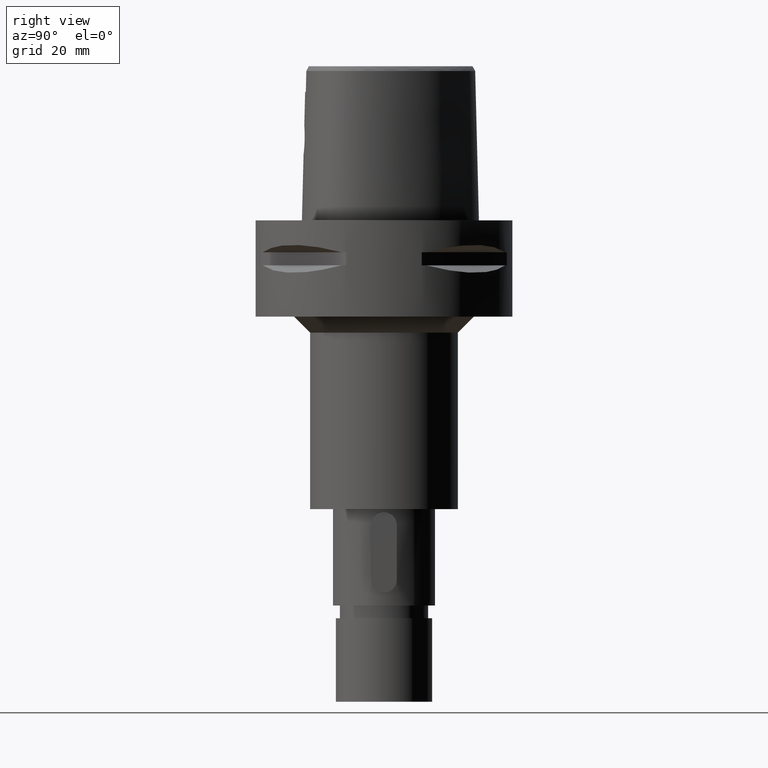
[diagram: clean part render]
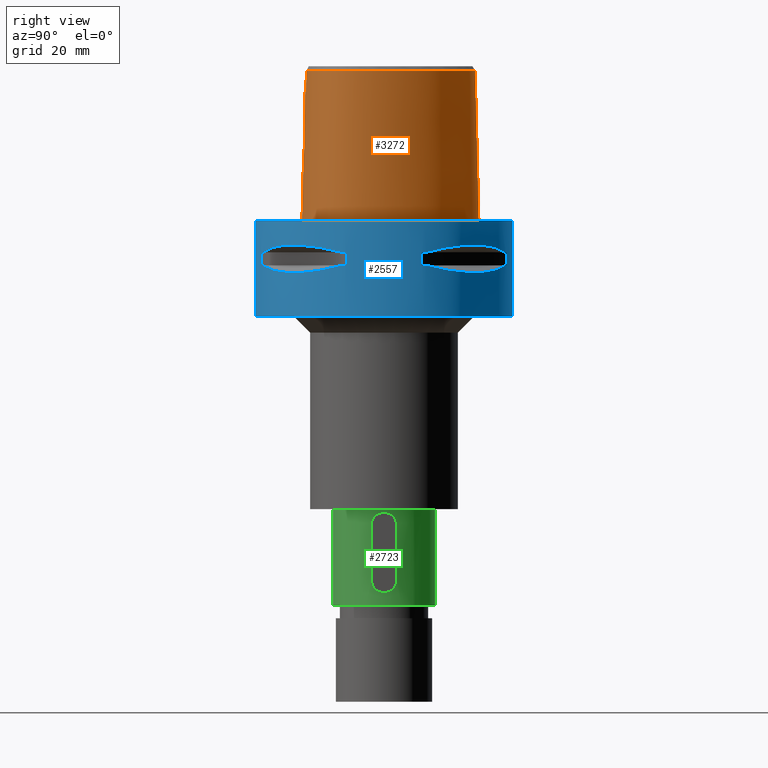
[diagram: same view with three faces highlighted in distinct colors, each labeled with its STEP entity id]
A machine part, right view with three faces highlighted in distinct colors.
Their STEP definitions:

[orange] entity #3272 — the highlighted face is a freeform B-spline surface patch.
#126=CARTESIAN_POINT('',(4.472216720977E0,-2.420009030094E1,4.652069014669E1));
#136=CARTESIAN_POINT('',(-1.344664598621E-11,2.841206021535E1,
4.652071719451E1));
#137=CARTESIAN_POINT('',(4.684967939510E-1,2.841206021535E1,4.652071719450E1));
#138=CARTESIAN_POINT('',(1.409694476970E0,2.836300179109E1,4.652069808154E1));
#139=CARTESIAN_POINT('',(2.941277498531E0,2.811693061418E1,4.652071981362E1));
#140=CARTESIAN_POINT('',(4.542113030431E0,2.768121082646E1,4.652071580544E1));
#141=CARTESIAN_POINT('',(6.226664118112E0,2.703434379547E1,4.652072264425E1));
#142=CARTESIAN_POINT('',(7.978548142713E0,2.615888088782E1,4.652072464534E1));
#143=CARTESIAN_POINT('',(9.743965214733E0,2.506861510128E1,4.652071069702E1));
#144=CARTESIAN_POINT('',(1.148662596568E1,2.378762594026E1,4.652072008645E1));
#145=CARTESIAN_POINT('',(1.324567883194E1,2.228280012557E1,4.652071053054E1));
#146=CARTESIAN_POINT('',(1.506620744984E1,2.048943006055E1,4.652071929630E1));
#147=CARTESIAN_POINT('',(1.699938694151E1,1.829546305659E1,4.652072348213E1));
#148=CARTESIAN_POINT('',(1.901475696621E1,1.563620579493E1,4.652067680644E1));
#149=CARTESIAN_POINT('',(2.099704995241E1,1.254981756695E1,4.652072905793E1));
#150=CARTESIAN_POINT('',(2.273005593894E1,9.316161415589E0,4.652068635233E1));
#151=CARTESIAN_POINT('',(2.409610127094E1,6.212796476556E0,4.652073526325E1));
#152=CARTESIAN_POINT('',(2.508516318229E1,3.429190223336E0,4.652070745588E1));
#153=CARTESIAN_POINT('',(2.579198667318E1,8.890580753926E-1,4.652071774662E1));
#154=CARTESIAN_POINT('',(2.626806747436E1,-1.456914216828E0,4.652071875765E1));
#155=CARTESIAN_POINT('',(2.654706439323E1,-3.653619468900E0,4.652071264896E1));
#156=CARTESIAN_POINT('',(2.664548349397E1,-5.742686706812E0,4.652072352033E1));
#157=CARTESIAN_POINT('',(2.656487623620E1,-7.723871444484E0,4.652072266789E1));
#158=CARTESIAN_POINT('',(2.631748519643E1,-9.536969720673E0,4.652071614817E1));
#159=CARTESIAN_POINT('',(2.592204141632E1,-1.118159327299E1,4.652071765768E1));
#160=CARTESIAN_POINT('',(2.540031143816E1,-1.265430922286E1,4.652071645345E1));
#161=CARTESIAN_POINT('',(2.475741663269E1,-1.399231370058E1,4.652071877229E1));
#162=CARTESIAN_POINT('',(2.398818909259E1,-1.522056759585E1,4.652071830950E1));
#163=CARTESIAN_POINT('',(2.305830316493E1,-1.640265778192E1,4.652071843312E1));
#164=CARTESIAN_POINT('',(2.193062814832E1,-1.756531745802E1,4.652071690486E1));
#165=CARTESIAN_POINT('',(2.055351328082E1,-1.872104609662E1,4.652071985736E1));
#166=CARTESIAN_POINT('',(1.893989980334E1,-1.982317630763E1,4.652072048828E1));
#167=CARTESIAN_POINT('',(1.711573784735E1,-2.083647285631E1,4.652071819726E1));
#168=CARTESIAN_POINT('',(1.514798583587E1,-2.172518071066E1,4.652071692685E1));
#169=CARTESIAN_POINT('',(1.298421573717E1,-2.251433302128E1,4.652071702410E1));
#170=CARTESIAN_POINT('',(1.054557086950E1,-2.321068755127E1,4.652070757844E1));
#171=CARTESIAN_POINT('',(7.770008681569E0,-2.379668616661E1,4.652074455655E1));
#172=CARTESIAN_POINT('',(5.612885431281E0,-2.409089905281E1,4.652064808639E1));
#173=CARTESIAN_POINT('',(4.472216720977E0,-2.420009030094E1,4.652069014669E1));
#247=DIRECTION('',(1.388127457203E-9,-2.499239851702E-2,-9.996876412242E-1));
#248=VECTOR('',#247,1.045326522127E1);
#249=CARTESIAN_POINT('',(-1.451045074373E-8,-2.457504746727E1,
4.000000005214E1));
#250=LINE('',#249,#248);
#268=CARTESIAN_POINT('',(-1.471980402915E-12,-2.506378435149E1,2.045E1));
#273=DIRECTION('',(-5.069013726386E-13,-2.499051295421E-2,-9.996876883619E-1));
#274=VECTOR('',#273,2.045638876829E1);
#275=CARTESIAN_POINT('',(-1.471980402915E-12,-2.506378435149E1,2.045E1));
#276=LINE('',#275,#274);
#296=CARTESIAN_POINT('',(-1.184135194879E-11,-2.5575E1,5.651035195342E-14));
#297=CARTESIAN_POINT('',(1.261238621678E0,-2.5575E1,5.651035195342E-14));
#298=CARTESIAN_POINT('',(3.718376521335E0,-2.547857319875E1,
-2.622654561359E-14));
#299=CARTESIAN_POINT('',(7.241671025876E0,-2.507018249385E1,0.E0));
#300=CARTESIAN_POINT('',(1.050186514317E1,-2.442969138420E1,0.E0));
#301=CARTESIAN_POINT('',(1.341994968635E1,-2.360714023817E1,0.E0));
#302=CARTESIAN_POINT('',(1.597211134731E1,-2.265224015399E1,0.E0));
#303=CARTESIAN_POINT('',(1.817383148660E1,-2.160480161931E1,0.E0));
#304=CARTESIAN_POINT('',(2.006067365719E1,-2.049015578929E1,0.E0));
#305=CARTESIAN_POINT('',(2.165744192350E1,-1.933495240673E1,0.E0));
#306=CARTESIAN_POINT('',(2.301207961487E1,-1.814106916780E1,0.E0));
#307=CARTESIAN_POINT('',(2.414512913607E1,-1.692257067922E1,0.E0));
#308=CARTESIAN_POINT('',(2.509912808057E1,-1.566067635013E1,0.E0));
#309=CARTESIAN_POINT('',(2.589357964506E1,-1.433652100146E1,0.E0));
#310=CARTESIAN_POINT('',(2.654389130106E1,-1.292938332888E1,0.E0));
#311=CARTESIAN_POINT('',(2.707172328836E1,-1.139174022610E1,0.E0));
#312=CARTESIAN_POINT('',(2.747100078885E1,-9.695535436744E0,0.E0));
#313=CARTESIAN_POINT('',(2.772772860508E1,-7.793252518364E0,0.E0));
#314=CARTESIAN_POINT('',(2.781205776278E1,-5.678384334808E0,0.E0));
#315=CARTESIAN_POINT('',(2.769250428910E1,-3.322453509345E0,0.E0));
#316=CARTESIAN_POINT('',(2.732953160454E1,-7.116077958537E-1,0.E0));
#317=CARTESIAN_POINT('',(2.668216957166E1,2.150800365378E0,0.E0));
#318=CARTESIAN_POINT('',(2.571434596721E1,5.237123211615E0,0.E0));
#319=CARTESIAN_POINT('',(2.440389157403E1,8.487583372600E0,0.E0));
#320=CARTESIAN_POINT('',(2.276465709442E1,1.178722344796E1,0.E0));
#321=CARTESIAN_POINT('',(2.085054465537E1,1.499581847934E1,0.E0));
#322=CARTESIAN_POINT('',(1.875783709650E1,1.795836410524E1,0.E0));
#323=CARTESIAN_POINT('',(1.657937174029E1,2.058058108947E1,0.E0));
#324=CARTESIAN_POINT('',(1.439693370190E1,2.281649842168E1,0.E0));
#325=CARTESIAN_POINT('',(1.226892136247E1,2.466459301985E1,0.E0));
#326=CARTESIAN_POINT('',(1.022684571373E1,2.615303276415E1,0.E0));
#327=CARTESIAN_POINT('',(8.288099626104E0,2.731875000257E1,0.E0));
#328=CARTESIAN_POINT('',(6.454697723033E0,2.820352161013E1,0.E0));
#329=CARTESIAN_POINT('',(4.718208451114E0,2.884629531795E1,0.E0));
#330=CARTESIAN_POINT('',(3.069546166511E0,2.927782237686E1,0.E0));
#331=CARTESIAN_POINT('',(1.501266042E0,2.952295074667E1,-2.323805908001E-14));
#332=CARTESIAN_POINT('',(4.932775472999E-1,2.957499999999E1,
5.007105841059E-14));
#333=CARTESIAN_POINT('',(3.071640558447E-11,2.957499999999E1,
5.007105841059E-14));
#338=CARTESIAN_POINT('',(3.071640558447E-11,2.957499999999E1,
5.007105841059E-14));
#375=CARTESIAN_POINT('',(-1.184135194879E-11,-2.5575E1,5.651035195342E-14));
#1148=CARTESIAN_POINT('',(-1.471980402915E-12,-2.506378435149E1,2.045E1));
#1149=CARTESIAN_POINT('',(3.954072385975E-1,-2.506378435149E1,2.045E1));
#1150=CARTESIAN_POINT('',(1.186753459268E0,-2.505127021271E1,2.055377441387E1));
#1151=CARTESIAN_POINT('',(2.293901026106E0,-2.499899038356E1,2.101029884895E1));
#1152=CARTESIAN_POINT('',(3.249199742156E0,-2.492423366302E1,2.174038340004E1));
#1153=CARTESIAN_POINT('',(3.983109891139E0,-2.484333493048E1,2.269399437273E1));
#1154=CARTESIAN_POINT('',(4.444902099457E0,-2.477340454867E1,2.380604644136E1));
#1155=CARTESIAN_POINT('',(4.602189725522E0,-2.472804812745E1,2.499792083744E1));
#1156=CARTESIAN_POINT('',(4.446334752733E0,-2.471346400510E1,2.618704469361E1));
#1157=CARTESIAN_POINT('',(3.988616765539E0,-2.472738510881E1,2.729584248229E1));
#1158=CARTESIAN_POINT('',(3.258671858173E0,-2.476043868878E1,2.825013255838E1));
#1159=CARTESIAN_POINT('',(2.303887962670E0,-2.479896037678E1,2.898443751551E1));
#1160=CARTESIAN_POINT('',(1.191549157684E0,-2.482886762172E1,2.944549741629E1));
#1161=CARTESIAN_POINT('',(3.970274391532E-1,-2.483629963748E1,2.955E1));
#1162=CARTESIAN_POINT('',(1.372734075390E-14,-2.483629963748E1,2.955E1));
#1167=CARTESIAN_POINT('',(4.602926386879E0,-2.435121850030E1,4.000000005215E1));
#1168=CARTESIAN_POINT('',(4.588866899356E0,-2.433440433283E1,4.072434907413E1));
#1169=CARTESIAN_POINT('',(4.559961035626E0,-2.430022594202E1,4.217314077646E1));
#1170=CARTESIAN_POINT('',(4.516394065040E0,-2.424985529238E1,4.434670381198E1));
#1171=CARTESIAN_POINT('',(4.487210999458E0,-2.421685509515E1,4.579599754735E1));
#1172=CARTESIAN_POINT('',(4.472216720977E0,-2.420009030094E1,4.652069014669E1));
#1177=DIRECTION('',(9.490236092259E-13,2.499051293976E-2,-9.996876883622E-1));
#1178=VECTOR('',#1177,4.653525069487E1);
#1179=CARTESIAN_POINT('',(-1.344664598621E-11,2.841206021535E1,
4.652071719451E1));
#1180=LINE('',#1179,#1178);
#1546=CARTESIAN_POINT('',(4.602926386879E0,-2.435121850030E1,4.000000005215E1));
#1547=CARTESIAN_POINT('',(4.092927945188E0,-2.440134254990E1,4.000000005215E1));
#1548=CARTESIAN_POINT('',(3.071957838276E0,-2.448406989328E1,3.999999998262E1));
#1549=CARTESIAN_POINT('',(1.536621703767E0,-2.455890147704E1,3.999999998262E1));
#1550=CARTESIAN_POINT('',(5.124223333400E-1,-2.457504746727E1,
4.000000005214E1));
#1551=CARTESIAN_POINT('',(-1.451045074373E-8,-2.457504746727E1,
4.000000005214E1));
#1556=CARTESIAN_POINT('',(-1.451045074373E-8,-2.457504746727E1,
4.000000005214E1));
#1583=VERTEX_POINT('',#126);
#1584=VERTEX_POINT('',#1167);
#1588=CARTESIAN_POINT('',(-1.344664598621E-11,2.841206021535E1,
4.652071719451E1));
#1589=VERTEX_POINT('',#1588);
#1590=VERTEX_POINT('',#338);
#1591=VERTEX_POINT('',#375);
#1592=VERTEX_POINT('',#1556);
#1593=CARTESIAN_POINT('',(1.372734075387E-14,-2.483629963748E1,2.955E1));
#1594=VERTEX_POINT('',#1593);
#1595=VERTEX_POINT('',#268);
#3151=CARTESIAN_POINT('',(-8.532294277696E-1,-2.559082453172E1,
-9.304145088381E-1));
#3152=CARTESIAN_POINT('',(-8.462047057211E-1,-2.518772799756E1,
1.519677031102E1));
#3153=CARTESIAN_POINT('',(-8.391799836726E-1,-2.478463146340E1,
3.132395513088E1));
#3154=CARTESIAN_POINT('',(-8.321552616240E-1,-2.438153492924E1,
4.745113995074E1));
#3155=CARTESIAN_POINT('',(-5.689009026249E-1,-2.559577917864E1,
-9.304145088381E-1));
#3156=CARTESIAN_POINT('',(-5.642169922449E-1,-2.519264563056E1,
1.519677031102E1));
#3157=CARTESIAN_POINT('',(-5.595330818649E-1,-2.478951208247E1,
3.132395513088E1));
#3158=CARTESIAN_POINT('',(-5.548491714850E-1,-2.438637853439E1,
4.745113995074E1));
#3159=CARTESIAN_POINT('',(2.393561154397E0,-2.562160365950E1,
-9.304145088381E-1));
#3160=CARTESIAN_POINT('',(2.373865159824E0,-2.521827241671E1,1.519677031102E1));
#3161=CARTESIAN_POINT('',(2.354169165251E0,-2.481494117392E1,3.132395513088E1));
#3162=CARTESIAN_POINT('',(2.334473170678E0,-2.441160993114E1,4.745113995074E1));
#3163=CARTESIAN_POINT('',(6.695047936614E0,-2.526858194701E1,
-9.304145088381E-1));
#3164=CARTESIAN_POINT('',(6.639625074949E0,-2.486795319891E1,1.519677031102E1));
#3165=CARTESIAN_POINT('',(6.584202213285E0,-2.446732445081E1,3.132395513088E1));
#3166=CARTESIAN_POINT('',(6.528779351620E0,-2.406669570272E1,4.745113995074E1));
#3167=CARTESIAN_POINT('',(1.174634101505E1,-2.415815461172E1,
-9.304145088381E-1));
#3168=CARTESIAN_POINT('',(1.164093423663E1,-2.376831842536E1,1.519677031102E1));
#3169=CARTESIAN_POINT('',(1.153552745822E1,-2.337848223900E1,3.132395513088E1));
#3170=CARTESIAN_POINT('',(1.143012067981E1,-2.298864605265E1,4.745113995074E1));
#3171=CARTESIAN_POINT('',(1.530623779629E1,-2.298697010262E1,
-9.304145088381E-1));
#3172=CARTESIAN_POINT('',(1.515935281685E1,-2.261055603219E1,1.519677031102E1));
#3173=CARTESIAN_POINT('',(1.501246783741E1,-2.223414196177E1,3.132395513088E1));
#3174=CARTESIAN_POINT('',(1.486558285796E1,-2.185772789134E1,4.745113995074E1));
#3175=CARTESIAN_POINT('',(1.856135208434E1,-2.147443746761E1,
-9.304145088381E-1));
#3176=CARTESIAN_POINT('',(1.836798846338E1,-2.111924011235E1,1.519677031102E1));
#3177=CARTESIAN_POINT('',(1.817462484241E1,-2.076404275708E1,3.132395513088E1));
#3178=CARTESIAN_POINT('',(1.798126122144E1,-2.040884540182E1,4.745113995074E1));
#3179=CARTESIAN_POINT('',(2.143542293297E1,-1.961750339196E1,
-9.304145088381E-1));
#3180=CARTESIAN_POINT('',(2.119046238461E1,-1.929498366049E1,1.519677031102E1));
#3181=CARTESIAN_POINT('',(2.094550183625E1,-1.897246392901E1,3.132395513088E1));
#3182=CARTESIAN_POINT('',(2.070054128789E1,-1.864994419754E1,4.745113995074E1));
#3183=CARTESIAN_POINT('',(2.344929528212E1,-1.778045352005E1,
-9.304145088381E-1));
#3184=CARTESIAN_POINT('',(2.315870204166E1,-1.749879693304E1,1.519677031102E1));
#3185=CARTESIAN_POINT('',(2.286810880120E1,-1.721714034603E1,3.132395513088E1));
#3186=CARTESIAN_POINT('',(2.257751556074E1,-1.693548375902E1,4.745113995074E1));
#3187=CARTESIAN_POINT('',(2.479336081514E1,-1.613554022499E1,
-9.304145088381E-1));
#3188=CARTESIAN_POINT('',(2.446791222502E1,-1.589630653346E1,1.519677031102E1));
#3189=CARTESIAN_POINT('',(2.414246363490E1,-1.565707284194E1,3.132395513088E1));
#3190=CARTESIAN_POINT('',(2.381701504479E1,-1.541783915042E1,4.745113995074E1));
#3191=CARTESIAN_POINT('',(2.565830880233E1,-1.481383149400E1,
-9.304145088381E-1));
#3192=CARTESIAN_POINT('',(2.530843713758E1,-1.461183299393E1,1.519677031102E1));
#3193=CARTESIAN_POINT('',(2.495856547282E1,-1.440983449385E1,3.132395513088E1));
#3194=CARTESIAN_POINT('',(2.460869380807E1,-1.420783599378E1,4.745113995074E1));
#3195=CARTESIAN_POINT('',(2.637046814614E1,-1.340391019852E1,
-9.304145088381E-1));
#3196=CARTESIAN_POINT('',(2.600056139783E1,-1.324168029917E1,1.519677031102E1));
#3197=CARTESIAN_POINT('',(2.563065464952E1,-1.307945039983E1,3.132395513088E1));
#3198=CARTESIAN_POINT('',(2.526074790120E1,-1.291722050048E1,4.745113995074E1));
#3199=CARTESIAN_POINT('',(2.712297208059E1,-1.141745865562E1,
-9.304145088381E-1));
#3200=CARTESIAN_POINT('',(2.673375369464E1,-1.130662581235E1,1.519677031102E1));
#3201=CARTESIAN_POINT('',(2.634453530870E1,-1.119579296908E1,3.132395513088E1));
#3202=CARTESIAN_POINT('',(2.595531692276E1,-1.108496012580E1,4.745113995074E1));
#3203=CARTESIAN_POINT('',(2.770696775982E1,-8.754869100935E0,
-9.304145088381E-1));
#3204=CARTESIAN_POINT('',(2.730517725571E1,-8.703986976393E0,1.519677031102E1));
#3205=CARTESIAN_POINT('',(2.690338675159E1,-8.653104851851E0,3.132395513088E1));
#3206=CARTESIAN_POINT('',(2.650159624748E1,-8.602222727310E0,4.745113995074E1));
#3207=CARTESIAN_POINT('',(2.787808443180E1,-5.337383714048E0,
-9.304145088381E-1));
#3208=CARTESIAN_POINT('',(2.747379250295E1,-5.347524337213E0,1.519677031102E1));
#3209=CARTESIAN_POINT('',(2.706950057409E1,-5.357664960378E0,3.132395513088E1));
#3210=CARTESIAN_POINT('',(2.666520864524E1,-5.367805583543E0,4.745113995074E1));
#3211=CARTESIAN_POINT('',(2.756041892320E1,-1.762105663641E0,
-9.304145088381E-1));
#3212=CARTESIAN_POINT('',(2.716099297682E1,-1.823107493862E0,1.519677031102E1));
#3213=CARTESIAN_POINT('',(2.676156703044E1,-1.884109324082E0,3.132395513088E1));
#3214=CARTESIAN_POINT('',(2.636214108406E1,-1.945111154303E0,4.745113995074E1));
#3215=CARTESIAN_POINT('',(2.679474625851E1,1.906447387538E0,
-9.304145088381E-1));
#3216=CARTESIAN_POINT('',(2.640443225128E1,1.802817670205E0,1.519677031102E1));
#3217=CARTESIAN_POINT('',(2.601411824404E1,1.699187952871E0,3.132395513088E1));
#3218=CARTESIAN_POINT('',(2.562380423681E1,1.595558235537E0,4.745113995074E1));
#3219=CARTESIAN_POINT('',(2.523075706257E1,6.836210430870E0,
-9.304145088381E-1));
#3220=CARTESIAN_POINT('',(2.485610464236E1,6.683875462453E0,1.519677031102E1));
#3221=CARTESIAN_POINT('',(2.448145222216E1,6.531540494036E0,3.132395513088E1));
#3222=CARTESIAN_POINT('',(2.410679980195E1,6.379205525618E0,4.745113995074E1));
#3223=CARTESIAN_POINT('',(2.235908247837E1,1.290902243091E1,
-9.304145088381E-1));
#3224=CARTESIAN_POINT('',(2.200846691966E1,1.270659196179E1,1.519677031102E1));
#3225=CARTESIAN_POINT('',(2.165785136095E1,1.250416149267E1,3.132395513088E1));
#3226=CARTESIAN_POINT('',(2.130723580224E1,1.230173102354E1,4.745113995074E1));
#3227=CARTESIAN_POINT('',(1.777103258690E1,1.953703864498E1,
-9.304145088381E-1));
#3228=CARTESIAN_POINT('',(1.745811261679E1,1.927961879860E1,1.519677031102E1));
#3229=CARTESIAN_POINT('',(1.714519264667E1,1.902219895222E1,3.132395513088E1));
#3230=CARTESIAN_POINT('',(1.683227267656E1,1.876477910584E1,4.745113995074E1));
#3231=CARTESIAN_POINT('',(1.323332856346E1,2.406149249964E1,
-9.304145088381E-1));
#3232=CARTESIAN_POINT('',(1.296695409144E1,2.375598708912E1,1.519677031102E1));
#3233=CARTESIAN_POINT('',(1.270057961943E1,2.345048167860E1,3.132395513088E1));
#3234=CARTESIAN_POINT('',(1.243420514741E1,2.314497626808E1,4.745113995074E1));
#3235=CARTESIAN_POINT('',(9.316733117685E0,2.681182150708E1,
-9.304145088381E-1));
#3236=CARTESIAN_POINT('',(9.105791459095E0,2.646675913432E1,1.519677031102E1));
#3237=CARTESIAN_POINT('',(8.894849800505E0,2.612169676155E1,3.132395513088E1));
#3238=CARTESIAN_POINT('',(8.683908141915E0,2.577663438879E1,4.745113995074E1));
#3239=CARTESIAN_POINT('',(6.271543170824E0,2.837237220596E1,
-9.304145088381E-1));
#3240=CARTESIAN_POINT('',(6.114741919608E0,2.799897532348E1,1.519677031102E1));
#3241=CARTESIAN_POINT('',(5.957940668393E0,2.762557844100E1,3.132395513088E1));
#3242=CARTESIAN_POINT('',(5.801139417177E0,2.725218155852E1,4.745113995074E1));
#3243=CARTESIAN_POINT('',(3.154109046678E0,2.936302093454E1,
-9.304145088381E-1));
#3244=CARTESIAN_POINT('',(3.067023395785E0,2.896669973594E1,1.519677031102E1));
#3245=CARTESIAN_POINT('',(2.979937744892E0,2.857037853733E1,3.132395513088E1));
#3246=CARTESIAN_POINT('',(2.892852093999E0,2.817405733873E1,4.745113995074E1));
#3247=CARTESIAN_POINT('',(7.484115208165E-1,2.963215901997E1,
-9.304145088381E-1));
#3248=CARTESIAN_POINT('',(7.265635654159E-1,2.922802202371E1,1.519677031102E1));
#3249=CARTESIAN_POINT('',(7.047156100153E-1,2.882388502746E1,3.132395513088E1));
#3250=CARTESIAN_POINT('',(6.828676546147E-1,2.841974803120E1,4.745113995074E1));
#3251=CARTESIAN_POINT('',(-6.060951003885E-1,2.958848805205E1,
-9.304145088381E-1));
#3252=CARTESIAN_POINT('',(-5.886350993904E-1,2.918561926518E1,
1.519677031102E1));
#3253=CARTESIAN_POINT('',(-5.711750983924E-1,2.878275047832E1,
3.132395513088E1));
#3254=CARTESIAN_POINT('',(-5.537150973943E-1,2.837988169146E1,
4.745113995074E1));
#3255=CARTESIAN_POINT('',(-9.090099845403E-1,2.956867551677E1,
-9.304145088381E-1));
#3256=CARTESIAN_POINT('',(-8.826521028003E-1,2.916640540920E1,
1.519677031102E1));
#3257=CARTESIAN_POINT('',(-8.562942210602E-1,2.876413530162E1,
3.132395513088E1));
#3258=CARTESIAN_POINT('',(-8.299363393202E-1,2.836186519405E1,
4.745113995074E1));
#3259=B_SPLINE_SURFACE_WITH_KNOTS('',3,3,((#3151,#3152,#3153,#3154),(#3155,
#3156,#3157,#3158),(#3159,#3160,#3161,#3162),(#3163,#3164,#3165,#3166),(#3167,
#3168,#3169,#3170),(#3171,#3172,#3173,#3174),(#3175,#3176,#3177,#3178),(#3179,
#3180,#3181,#3182),(#3183,#3184,#3185,#3186),(#3187,#3188,#3189,#3190),(#3191,
#3192,#3193,#3194),(#3195,#3196,#3197,#3198),(#3199,#3200,#3201,#3202),(#3203,
#3204,#3205,#3206),(#3207,#3208,#3209,#3210),(#3211,#3212,#3213,#3214),(#3215,
#3216,#3217,#3218),(#3219,#3220,#3221,#3222),(#3223,#3224,#3225,#3226),(#3227,
#3228,#3229,#3230),(#3231,#3232,#3233,#3234),(#3235,#3236,#3237,#3238),(#3239,
#3240,#3241,#3242),(#3243,#3244,#3245,#3246),(#3247,#3248,#3249,#3250),(#3251,
#3252,#3253,#3254),(#3255,#3256,#3257,#3258)),.UNSPECIFIED.,.F.,.F.,.F.,(4,1,1,
1,1,1,1,1,1,1,1,1,1,1,1,1,1,1,1,1,1,1,1,1,4),(4,4),(-8.851417483033E-3,0.E0,
8.333333333341E-2,1.250000000001E-1,1.666666666667E-1,2.083333333333E-1,2.5E-1,
2.916666666667E-1,3.124999999999E-1,3.333333333332E-1,3.541666666666E-1,
3.749999999999E-1,4.166666666666E-1,4.583333333332E-1,4.999999999998E-1,
5.416666666665E-1,5.833333333331E-1,6.666666666665E-1,7.499999999997E-1,
8.333333333330E-1,8.749999999996E-1,9.166666666663E-1,9.583333333329E-1,1.E0,
1.012009199036E0),(4.559754549632E-9,9.999997674526E-1),.UNSPECIFIED.);
#3260=ORIENTED_EDGE('',*,*,#2501,.F.);
#3261=ORIENTED_EDGE('',*,*,#2485,.F.);
#3263=ORIENTED_EDGE('',*,*,#3262,.T.);
#3264=ORIENTED_EDGE('',*,*,#2481,.F.);
#3266=ORIENTED_EDGE('',*,*,#3265,.F.);
#3267=ORIENTED_EDGE('',*,*,#1782,.T.);
#3268=ORIENTED_EDGE('',*,*,#2074,.F.);
#3269=ORIENTED_EDGE('',*,*,#2475,.T.);
#3270=EDGE_LOOP('',(#3260,#3261,#3263,#3264,#3266,#3267,#3268,#3269));
#3271=FACE_OUTER_BOUND('',#3270,.F.);
#174=B_SPLINE_CURVE_WITH_KNOTS('',3,(#136,#137,#138,#139,#140,#141,#142,#143,
#144,#145,#146,#147,#148,#149,#150,#151,#152,#153,#154,#155,#156,#157,#158,#159,
#160,#161,#162,#163,#164,#165,#166,#167,#168,#169,#170,#171,#172,#173),
.UNSPECIFIED.,.F.,.F.,(4,1,1,1,1,1,1,1,1,1,1,1,1,1,1,1,1,1,1,1,1,1,1,1,1,1,1,1,
1,1,1,1,1,1,1,4),(0.E0,2.857142857143E-2,5.714285714286E-2,8.571428571429E-2,
1.142857142857E-1,1.428571428571E-1,1.714285714286E-1,2.E-1,2.285714285714E-1,
2.571428571429E-1,2.857142857143E-1,3.142857142857E-1,3.428571428571E-1,
3.714285714286E-1,4.E-1,4.285714285714E-1,4.571428571429E-1,4.857142857143E-1,
5.142857142857E-1,5.428571428571E-1,5.714285714286E-1,6.E-1,6.285714285714E-1,
6.571428571429E-1,6.857142857143E-1,7.142857142857E-1,7.428571428571E-1,
7.714285714286E-1,8.E-1,8.285714285714E-1,8.571428571429E-1,8.857142857143E-1,
9.142857142857E-1,9.428571428571E-1,9.714285714286E-1,1.E0),.UNSPECIFIED.);
#334=B_SPLINE_CURVE_WITH_KNOTS('',3,(#296,#297,#298,#299,#300,#301,#302,#303,
#304,#305,#306,#307,#308,#309,#310,#311,#312,#313,#314,#315,#316,#317,#318,#319,
#320,#321,#322,#323,#324,#325,#326,#327,#328,#329,#330,#331,#332,#333),
.UNSPECIFIED.,.F.,.F.,(4,1,1,1,1,1,1,1,1,1,1,1,1,1,1,1,1,1,1,1,1,1,1,1,1,1,1,1,
1,1,1,1,1,1,1,4),(0.E0,2.857142857143E-2,5.714285714286E-2,8.571428571429E-2,
1.142857142857E-1,1.428571428571E-1,1.714285714286E-1,2.E-1,2.285714285714E-1,
2.571428571429E-1,2.857142857143E-1,3.142857142857E-1,3.428571428571E-1,
3.714285714286E-1,4.E-1,4.285714285714E-1,4.571428571429E-1,4.857142857143E-1,
5.142857142857E-1,5.428571428571E-1,5.714285714286E-1,6.E-1,6.285714285714E-1,
6.571428571429E-1,6.857142857143E-1,7.142857142857E-1,7.428571428571E-1,
7.714285714286E-1,8.E-1,8.285714285714E-1,8.571428571429E-1,8.857142857143E-1,
9.142857142857E-1,9.428571428571E-1,9.714285714286E-1,1.E0),.UNSPECIFIED.);
#1163=B_SPLINE_CURVE_WITH_KNOTS('',3,(#1148,#1149,#1150,#1151,#1152,#1153,#1154,
#1155,#1156,#1157,#1158,#1159,#1160,#1161,#1162),.UNSPECIFIED.,.F.,.F.,(4,1,1,1,
1,1,1,1,1,1,1,1,4),(0.E0,8.333333333333E-2,1.666666666667E-1,2.5E-1,
3.333333333333E-1,4.166666666667E-1,5.E-1,5.833333333333E-1,6.666666666667E-1,
7.5E-1,8.333333333333E-1,9.166666666667E-1,1.E0),.UNSPECIFIED.);
#1173=B_SPLINE_CURVE_WITH_KNOTS('',3,(#1167,#1168,#1169,#1170,#1171,#1172),
.UNSPECIFIED.,.F.,.F.,(4,1,1,4),(0.E0,3.333333333333E-1,6.666666666667E-1,1.E0),
.UNSPECIFIED.);
#1552=B_SPLINE_CURVE_WITH_KNOTS('',3,(#1546,#1547,#1548,#1549,#1550,#1551),
.UNSPECIFIED.,.F.,.F.,(4,1,1,4),(0.E0,3.333333333333E-1,6.666666666667E-1,1.E0),
.UNSPECIFIED.);
#1782=EDGE_CURVE('',#1584,#1583,#1173,.T.);
#2074=EDGE_CURVE('',#1589,#1583,#174,.T.);
#2475=EDGE_CURVE('',#1589,#1590,#1180,.T.);
#2481=EDGE_CURVE('',#1592,#1594,#250,.T.);
#2485=EDGE_CURVE('',#1595,#1591,#276,.T.);
#2501=EDGE_CURVE('',#1591,#1590,#334,.T.);
#3262=EDGE_CURVE('',#1595,#1594,#1163,.T.);
#3265=EDGE_CURVE('',#1584,#1592,#1552,.T.);
#3272=ADVANCED_FACE('',(#3271),#3259,.T.);

[blue] entity #2557 — the highlighted cylindrical surface (partial cylindrical patch) has radius 40 mm, axis along (0, 0, -1).
#280=CARTESIAN_POINT('',(0.E0,1.316495309083E-14,0.E0));
#281=DIRECTION('',(0.E0,0.E0,-1.E0));
#282=DIRECTION('',(0.E0,1.E0,0.E0));
#283=AXIS2_PLACEMENT_3D('',#280,#281,#282);
#380=DIRECTION('',(0.E0,0.E0,-1.E0));
#381=VECTOR('',#380,3.E1);
#382=CARTESIAN_POINT('',(0.E0,4.E1,0.E0));
#383=LINE('',#382,#381);
#387=CARTESIAN_POINT('',(3.774622163927E1,-1.323717311056E1,-9.949999999998E0));
#388=CARTESIAN_POINT('',(3.668564587161E1,-1.626143876435E1,-9.148326960987E0));
#389=CARTESIAN_POINT('',(3.397359084062E1,-2.171906657626E1,-8.027451566828E0));
#390=CARTESIAN_POINT('',(2.850324251697E1,-2.850324251697E1,-7.491083688200E0));
#391=CARTESIAN_POINT('',(2.171906657626E1,-3.397359084062E1,-8.027451566828E0));
#392=CARTESIAN_POINT('',(1.626143876435E1,-3.668564587161E1,-9.148326960987E0));
#393=CARTESIAN_POINT('',(1.323717311056E1,-3.774622163927E1,-9.949999999998E0));
#398=DIRECTION('',(0.E0,0.E0,-1.E0));
#399=VECTOR('',#398,4.1E0);
#400=CARTESIAN_POINT('',(1.176033600281E1,-3.823211342708E1,-9.95E0));
#401=LINE('',#400,#399);
#405=CARTESIAN_POINT('',(1.323717311056E1,-3.774622163927E1,-1.405E1));
#406=CARTESIAN_POINT('',(1.626143876435E1,-3.668564587161E1,-1.485167303901E1));
#407=CARTESIAN_POINT('',(2.171906657626E1,-3.397359084062E1,-1.597254843317E1));
#408=CARTESIAN_POINT('',(2.850324251697E1,-2.850324251697E1,-1.650891631180E1));
#409=CARTESIAN_POINT('',(3.397359084062E1,-2.171906657626E1,-1.597254843317E1));
#410=CARTESIAN_POINT('',(3.668564587161E1,-1.626143876435E1,-1.485167303901E1));
#411=CARTESIAN_POINT('',(3.774622163927E1,-1.323717311056E1,-1.405E1));
#416=DIRECTION('',(0.E0,0.E0,1.E0));
#417=VECTOR('',#416,4.1E0);
#418=CARTESIAN_POINT('',(3.823211342708E1,-1.176033600281E1,-1.405E1));
#419=LINE('',#418,#417);
#423=CARTESIAN_POINT('',(1.323717311056E1,3.774622163927E1,-9.949999999998E0));
#424=CARTESIAN_POINT('',(1.626143876435E1,3.668564587161E1,-9.148326960987E0));
#425=CARTESIAN_POINT('',(2.171906657626E1,3.397359084062E1,-8.027451566828E0));
#426=CARTESIAN_POINT('',(2.850324251697E1,2.850324251697E1,-7.491083688200E0));
#427=CARTESIAN_POINT('',(3.397359084062E1,2.171906657626E1,-8.027451566828E0));
#428=CARTESIAN_POINT('',(3.668564587161E1,1.626143876435E1,-9.148326960987E0));
#429=CARTESIAN_POINT('',(3.774622163927E1,1.323717311056E1,-9.949999999998E0));
#434=DIRECTION('',(0.E0,0.E0,-1.E0));
#435=VECTOR('',#434,4.1E0);
#436=CARTESIAN_POINT('',(3.823211342708E1,1.176033600281E1,-9.95E0));
#437=LINE('',#436,#435);
#441=CARTESIAN_POINT('',(3.774622163927E1,1.323717311056E1,-1.405E1));
#442=CARTESIAN_POINT('',(3.668564587161E1,1.626143876435E1,-1.485167303901E1));
#443=CARTESIAN_POINT('',(3.397359084062E1,2.171906657626E1,-1.597254843317E1));
#444=CARTESIAN_POINT('',(2.850324251697E1,2.850324251697E1,-1.650891631180E1));
#445=CARTESIAN_POINT('',(2.171906657626E1,3.397359084062E1,-1.597254843317E1));
#446=CARTESIAN_POINT('',(1.626143876435E1,3.668564587161E1,-1.485167303901E1));
#447=CARTESIAN_POINT('',(1.323717311056E1,3.774622163927E1,-1.405E1));
#452=DIRECTION('',(0.E0,0.E0,1.E0));
#453=VECTOR('',#452,4.1E0);
#454=CARTESIAN_POINT('',(1.176033600281E1,3.823211342708E1,-1.405E1));
#455=LINE('',#454,#453);
#459=DIRECTION('',(0.E0,0.E0,-1.E0));
#460=VECTOR('',#459,3.E1);
#461=CARTESIAN_POINT('',(0.E0,-4.E1,0.E0));
#462=LINE('',#461,#460);
#546=CARTESIAN_POINT('',(0.E0,1.316495309083E-14,-3.E1));
#547=DIRECTION('',(0.E0,0.E0,1.E0));
#548=DIRECTION('',(0.E0,-1.E0,0.E0));
#549=AXIS2_PLACEMENT_3D('',#546,#547,#548);
#1028=CARTESIAN_POINT('',(0.E0,1.316495309083E-14,-9.95E0));
#1029=DIRECTION('',(0.E0,0.E0,1.E0));
#1030=DIRECTION('',(9.436555409818E-1,-3.309293277639E-1,0.E0));
#1031=AXIS2_PLACEMENT_3D('',#1028,#1029,#1030);
#1036=CARTESIAN_POINT('',(0.E0,1.316495309083E-14,-9.95E0));
#1037=DIRECTION('',(0.E0,0.E0,1.E0));
#1038=DIRECTION('',(2.940084000703E-1,-9.558028356770E-1,0.E0));
#1039=AXIS2_PLACEMENT_3D('',#1036,#1037,#1038);
#1058=CARTESIAN_POINT('',(0.E0,1.316495309083E-14,-1.405E1));
#1059=DIRECTION('',(0.E0,0.E0,-1.E0));
#1060=DIRECTION('',(9.558028356770E-1,-2.940084000703E-1,0.E0));
#1061=AXIS2_PLACEMENT_3D('',#1058,#1059,#1060);
#1066=CARTESIAN_POINT('',(0.E0,1.316495309083E-14,-1.405E1));
#1067=DIRECTION('',(0.E0,0.E0,-1.E0));
#1068=DIRECTION('',(3.309293277639E-1,-9.436555409818E-1,0.E0));
#1069=AXIS2_PLACEMENT_3D('',#1066,#1067,#1068);
#1088=CARTESIAN_POINT('',(0.E0,1.316495309083E-14,-9.95E0));
#1089=DIRECTION('',(0.E0,0.E0,1.E0));
#1090=DIRECTION('',(3.309293277639E-1,9.436555409818E-1,0.E0));
#1091=AXIS2_PLACEMENT_3D('',#1088,#1089,#1090);
#1096=CARTESIAN_POINT('',(0.E0,1.316495309083E-14,-9.95E0));
#1097=DIRECTION('',(0.E0,0.E0,1.E0));
#1098=DIRECTION('',(9.558028356770E-1,2.940084000703E-1,0.E0));
#1099=AXIS2_PLACEMENT_3D('',#1096,#1097,#1098);
#1118=CARTESIAN_POINT('',(0.E0,1.316495309083E-14,-1.405E1));
#1119=DIRECTION('',(0.E0,0.E0,-1.E0));
#1120=DIRECTION('',(2.940084000703E-1,9.558028356770E-1,0.E0));
#1121=AXIS2_PLACEMENT_3D('',#1118,#1119,#1120);
#1126=CARTESIAN_POINT('',(0.E0,1.316495309083E-14,-1.405E1));
#1127=DIRECTION('',(0.E0,0.E0,-1.E0));
#1128=DIRECTION('',(9.436555409818E-1,3.309293277639E-1,0.E0));
#1129=AXIS2_PLACEMENT_3D('',#1126,#1127,#1128);
#1596=CARTESIAN_POINT('',(0.E0,4.E1,0.E0));
#1597=CARTESIAN_POINT('',(0.E0,-4.E1,0.E0));
#1598=VERTEX_POINT('',#1596);
#1599=VERTEX_POINT('',#1597);
#1600=CARTESIAN_POINT('',(0.E0,4.E1,-3.E1));
#1601=VERTEX_POINT('',#1600);
#1602=CARTESIAN_POINT('',(0.E0,-4.E1,-3.E1));
#1603=VERTEX_POINT('',#1602);
#1604=VERTEX_POINT('',#387);
#1605=VERTEX_POINT('',#393);
#1606=CARTESIAN_POINT('',(1.176033600281E1,-3.823211342708E1,-9.95E0));
#1607=VERTEX_POINT('',#1606);
#1608=CARTESIAN_POINT('',(1.176033600281E1,-3.823211342708E1,-1.405E1));
#1609=VERTEX_POINT('',#1608);
#1610=CARTESIAN_POINT('',(1.323717311056E1,-3.774622163927E1,-1.405E1));
#1611=VERTEX_POINT('',#1610);
#1612=VERTEX_POINT('',#411);
#1613=CARTESIAN_POINT('',(3.823211342708E1,-1.176033600281E1,-1.405E1));
#1614=VERTEX_POINT('',#1613);
#1615=CARTESIAN_POINT('',(3.823211342708E1,-1.176033600281E1,-9.95E0));
#1616=VERTEX_POINT('',#1615);
#1617=VERTEX_POINT('',#423);
#1618=VERTEX_POINT('',#429);
#1619=CARTESIAN_POINT('',(3.823211342708E1,1.176033600281E1,-9.95E0));
#1620=VERTEX_POINT('',#1619);
#1621=CARTESIAN_POINT('',(3.823211342708E1,1.176033600281E1,-1.405E1));
#1622=VERTEX_POINT('',#1621);
#1623=CARTESIAN_POINT('',(3.774622163927E1,1.323717311056E1,-1.405E1));
#1624=VERTEX_POINT('',#1623);
#1625=VERTEX_POINT('',#447);
#1626=CARTESIAN_POINT('',(1.176033600281E1,3.823211342708E1,-1.405E1));
#1627=VERTEX_POINT('',#1626);
#1628=CARTESIAN_POINT('',(1.176033600281E1,3.823211342708E1,-9.95E0));
#1629=VERTEX_POINT('',#1628);
#2507=CARTESIAN_POINT('',(0.E0,1.316495309083E-14,7.5E0));
#2508=DIRECTION('',(0.E0,0.E0,-1.E0));
#2509=DIRECTION('',(0.E0,-1.E0,0.E0));
#2510=AXIS2_PLACEMENT_3D('',#2507,#2508,#2509);
#2511=CYLINDRICAL_SURFACE('',#2510,4.E1);
#2513=ORIENTED_EDGE('',*,*,#2512,.T.);
#2515=ORIENTED_EDGE('',*,*,#2514,.F.);
#2517=ORIENTED_EDGE('',*,*,#2516,.F.);
#2518=ORIENTED_EDGE('',*,*,#2495,.F.);
#2519=EDGE_LOOP('',(#2513,#2515,#2517,#2518));
#2520=FACE_OUTER_BOUND('',#2519,.F.);
#2522=ORIENTED_EDGE('',*,*,#2521,.T.);
#2524=ORIENTED_EDGE('',*,*,#2523,.F.);
#2526=ORIENTED_EDGE('',*,*,#2525,.T.);
#2528=ORIENTED_EDGE('',*,*,#2527,.F.);
#2530=ORIENTED_EDGE('',*,*,#2529,.T.);
#2532=ORIENTED_EDGE('',*,*,#2531,.F.);
#2534=ORIENTED_EDGE('',*,*,#2533,.T.);
#2536=ORIENTED_EDGE('',*,*,#2535,.F.);
#2537=EDGE_LOOP('',(#2522,#2524,#2526,#2528,#2530,#2532,#2534,#2536));
#2538=FACE_BOUND('',#2537,.F.);
#2540=ORIENTED_EDGE('',*,*,#2539,.T.);
#2542=ORIENTED_EDGE('',*,*,#2541,.F.);
#2544=ORIENTED_EDGE('',*,*,#2543,.T.);
#2546=ORIENTED_EDGE('',*,*,#2545,.F.);
#2548=ORIENTED_EDGE('',*,*,#2547,.T.);
#2550=ORIENTED_EDGE('',*,*,#2549,.F.);
#2552=ORIENTED_EDGE('',*,*,#2551,.T.);
#2554=ORIENTED_EDGE('',*,*,#2553,.F.);
#2555=EDGE_LOOP('',(#2540,#2542,#2544,#2546,#2548,#2550,#2552,#2554));
#2556=FACE_BOUND('',#2555,.F.);
#284=CIRCLE('',#283,4.E1);
#394=B_SPLINE_CURVE_WITH_KNOTS('',3,(#387,#388,#389,#390,#391,#392,#393),
.UNSPECIFIED.,.F.,.F.,(4,1,1,1,4),(0.E0,2.5E-1,5.E-1,7.5E-1,1.E0),
.UNSPECIFIED.);
#412=B_SPLINE_CURVE_WITH_KNOTS('',3,(#405,#406,#407,#408,#409,#410,#411),
.UNSPECIFIED.,.F.,.F.,(4,1,1,1,4),(0.E0,2.5E-1,5.E-1,7.5E-1,1.E0),
.UNSPECIFIED.);
#430=B_SPLINE_CURVE_WITH_KNOTS('',3,(#423,#424,#425,#426,#427,#428,#429),
.UNSPECIFIED.,.F.,.F.,(4,1,1,1,4),(0.E0,2.5E-1,5.E-1,7.5E-1,1.E0),
.UNSPECIFIED.);
#448=B_SPLINE_CURVE_WITH_KNOTS('',3,(#441,#442,#443,#444,#445,#446,#447),
.UNSPECIFIED.,.F.,.F.,(4,1,1,1,4),(0.E0,2.5E-1,5.E-1,7.5E-1,1.E0),
.UNSPECIFIED.);
#550=CIRCLE('',#549,4.E1);
#1032=CIRCLE('',#1031,4.E1);
#1040=CIRCLE('',#1039,4.E1);
#1062=CIRCLE('',#1061,4.E1);
#1070=CIRCLE('',#1069,4.E1);
#1092=CIRCLE('',#1091,4.E1);
#1100=CIRCLE('',#1099,4.E1);
#1122=CIRCLE('',#1121,4.E1);
#1130=CIRCLE('',#1129,4.E1);
#2495=EDGE_CURVE('',#1598,#1599,#284,.T.);
#2512=EDGE_CURVE('',#1598,#1601,#383,.T.);
#2514=EDGE_CURVE('',#1603,#1601,#550,.T.);
#2516=EDGE_CURVE('',#1599,#1603,#462,.T.);
#2521=EDGE_CURVE('',#1604,#1605,#394,.T.);
#2523=EDGE_CURVE('',#1607,#1605,#1040,.T.);
#2525=EDGE_CURVE('',#1607,#1609,#401,.T.);
#2527=EDGE_CURVE('',#1611,#1609,#1070,.T.);
#2529=EDGE_CURVE('',#1611,#1612,#412,.T.);
#2531=EDGE_CURVE('',#1614,#1612,#1062,.T.);
#2533=EDGE_CURVE('',#1614,#1616,#419,.T.);
#2535=EDGE_CURVE('',#1604,#1616,#1032,.T.);
#2539=EDGE_CURVE('',#1617,#1618,#430,.T.);
#2541=EDGE_CURVE('',#1620,#1618,#1100,.T.);
#2543=EDGE_CURVE('',#1620,#1622,#437,.T.);
#2545=EDGE_CURVE('',#1624,#1622,#1130,.T.);
#2547=EDGE_CURVE('',#1624,#1625,#448,.T.);
#2549=EDGE_CURVE('',#1627,#1625,#1122,.T.);
#2551=EDGE_CURVE('',#1627,#1629,#455,.T.);
#2553=EDGE_CURVE('',#1617,#1629,#1092,.T.);
#2557=ADVANCED_FACE('',(#2520,#2538,#2556),#2511,.T.);

[green] entity #2723 — the highlighted cylindrical surface (partial cylindrical patch) has radius 15.875 mm, axis along (0, 0, -1).
#630=CARTESIAN_POINT('',(0.E0,1.316495309083E-14,-9.E1));
#631=DIRECTION('',(0.E0,0.E0,-1.E0));
#632=DIRECTION('',(0.E0,1.E0,0.E0));
#633=AXIS2_PLACEMENT_3D('',#630,#631,#632);
#646=DIRECTION('',(0.E0,0.E0,-1.E0));
#647=VECTOR('',#646,3.E1);
#648=CARTESIAN_POINT('',(0.E0,1.5875E1,-9.E1));
#649=LINE('',#648,#647);
#653=DIRECTION('',(0.E0,0.E0,-1.E0));
#654=VECTOR('',#653,1.708E1);
#655=CARTESIAN_POINT('',(1.537315923940E1,-3.96E0,-9.496E1));
#656=LINE('',#655,#654);
#660=DIRECTION('',(0.E0,0.E0,1.E0));
#661=VECTOR('',#660,1.708E1);
#662=CARTESIAN_POINT('',(1.537315923940E1,3.96E0,-1.1204E2));
#663=LINE('',#662,#661);
#667=DIRECTION('',(0.E0,0.E0,-1.E0));
#668=VECTOR('',#667,3.E1);
#669=CARTESIAN_POINT('',(0.E0,-1.5875E1,-9.E1));
#670=LINE('',#669,#668);
#682=CARTESIAN_POINT('',(0.E0,1.316495309083E-14,-1.2E2));
#683=DIRECTION('',(0.E0,0.E0,1.E0));
#684=DIRECTION('',(0.E0,-1.E0,0.E0));
#685=AXIS2_PLACEMENT_3D('',#682,#683,#684);
#782=CARTESIAN_POINT('',(1.537315923940E1,-3.96E0,-9.496E1));
#783=CARTESIAN_POINT('',(1.537315923940E1,-3.96E0,-9.462314176549E1));
#784=CARTESIAN_POINT('',(1.539560675730E1,-3.874577827577E0,-9.394394754908E1));
#785=CARTESIAN_POINT('',(1.549321455845E1,-3.474115574813E0,-9.296501691808E1));
#786=CARTESIAN_POINT('',(1.562451178911E1,-2.841327907948E0,-9.213786800821E1));
#787=CARTESIAN_POINT('',(1.575545458142E1,-2.016288918091E0,-9.149769264797E1));
#788=CARTESIAN_POINT('',(1.585247191147E1,-1.032440706313E0,-9.108873043702E1));
#789=CARTESIAN_POINT('',(1.5875E1,-3.431044826269E-1,-9.100000000001E1));
#790=CARTESIAN_POINT('',(1.5875E1,0.E0,-9.100000000001E1));
#795=CARTESIAN_POINT('',(1.5875E1,0.E0,-9.100000000001E1));
#796=CARTESIAN_POINT('',(1.5875E1,3.376206505901E-1,-9.100000000001E1));
#797=CARTESIAN_POINT('',(1.585320846370E1,1.017848219507E0,-9.108585156571E1));
#798=CARTESIAN_POINT('',(1.575797967933E1,1.996179726139E0,-9.148665702926E1));
#799=CARTESIAN_POINT('',(1.562797305939E1,2.822681576735E0,-9.211924301991E1));
#800=CARTESIAN_POINT('',(1.549583407565E1,3.462879732331E0,-9.294459719177E1));
#801=CARTESIAN_POINT('',(1.539639598570E1,3.871592929325E0,-9.392888707334E1));
#802=CARTESIAN_POINT('',(1.537315923940E1,3.96E0,-9.461745273389E1));
#803=CARTESIAN_POINT('',(1.537315923940E1,3.96E0,-9.496E1));
#822=CARTESIAN_POINT('',(1.537315923940E1,3.96E0,-1.1204E2));
#823=CARTESIAN_POINT('',(1.537315923940E1,3.96E0,-1.123768579347E2));
#824=CARTESIAN_POINT('',(1.539560674461E1,3.874577818754E0,-1.130560516951E2));
#825=CARTESIAN_POINT('',(1.549321425277E1,3.474117014040E0,-1.140349808344E2));
#826=CARTESIAN_POINT('',(1.562451177250E1,2.841327783855E0,-1.148621319288E2));
#827=CARTESIAN_POINT('',(1.575545415961E1,2.016292381481E0,-1.155023054166E2));
#828=CARTESIAN_POINT('',(1.585247210732E1,1.032438919180E0,-1.159112704272E2));
#829=CARTESIAN_POINT('',(1.5875E1,3.431036305973E-1,-1.16E2));
#830=CARTESIAN_POINT('',(1.5875E1,0.E0,-1.16E2));
#835=CARTESIAN_POINT('',(1.5875E1,0.E0,-1.16E2));
#836=CARTESIAN_POINT('',(1.5875E1,-3.376219717969E-1,-1.16E2));
#837=CARTESIAN_POINT('',(1.585320820666E1,-1.017851345285E0,-1.159141473318E2));
#838=CARTESIAN_POINT('',(1.575797983855E1,-1.996178402403E0,-1.155133437673E2));
#839=CARTESIAN_POINT('',(1.562797263358E1,-2.822684116996E0,-1.148807546834E2));
#840=CARTESIAN_POINT('',(1.549583403078E1,-3.462879792547E0,-1.140554023547E2));
#841=CARTESIAN_POINT('',(1.539639587191E1,-3.871593422071E0,-1.130711114007E2));
#842=CARTESIAN_POINT('',(1.537315923940E1,-3.96E0,-1.123825466794E2));
#843=CARTESIAN_POINT('',(1.537315923940E1,-3.96E0,-1.1204E2));
#1668=CARTESIAN_POINT('',(0.E0,1.5875E1,-9.E1));
#1669=CARTESIAN_POINT('',(0.E0,-1.5875E1,-9.E1));
#1670=VERTEX_POINT('',#1668);
#1671=VERTEX_POINT('',#1669);
#1672=CARTESIAN_POINT('',(0.E0,1.5875E1,-1.2E2));
#1673=VERTEX_POINT('',#1672);
#1674=CARTESIAN_POINT('',(0.E0,-1.5875E1,-1.2E2));
#1675=VERTEX_POINT('',#1674);
#1676=VERTEX_POINT('',#795);
#1677=VERTEX_POINT('',#803);
#1678=VERTEX_POINT('',#782);
#1679=CARTESIAN_POINT('',(1.537315923940E1,-3.96E0,-1.1204E2));
#1680=VERTEX_POINT('',#1679);
#1681=VERTEX_POINT('',#835);
#1682=VERTEX_POINT('',#822);
#2695=CARTESIAN_POINT('',(0.E0,1.316495309083E-14,7.5E0));
#2696=DIRECTION('',(0.E0,0.E0,-1.E0));
#2697=DIRECTION('',(0.E0,-1.E0,0.E0));
#2698=AXIS2_PLACEMENT_3D('',#2695,#2696,#2697);
#2699=CYLINDRICAL_SURFACE('',#2698,1.5875E1);
#2701=ORIENTED_EDGE('',*,*,#2700,.T.);
#2703=ORIENTED_EDGE('',*,*,#2702,.F.);
#2705=ORIENTED_EDGE('',*,*,#2704,.F.);
#2706=ORIENTED_EDGE('',*,*,#2688,.F.);
#2707=EDGE_LOOP('',(#2701,#2703,#2705,#2706));
#2708=FACE_OUTER_BOUND('',#2707,.F.);
#2710=ORIENTED_EDGE('',*,*,#2709,.F.);
#2712=ORIENTED_EDGE('',*,*,#2711,.F.);
#2714=ORIENTED_EDGE('',*,*,#2713,.T.);
#2716=ORIENTED_EDGE('',*,*,#2715,.F.);
#2718=ORIENTED_EDGE('',*,*,#2717,.F.);
#2720=ORIENTED_EDGE('',*,*,#2719,.T.);
#2721=EDGE_LOOP('',(#2710,#2712,#2714,#2716,#2718,#2720));
#2722=FACE_BOUND('',#2721,.F.);
#634=CIRCLE('',#633,1.5875E1);
#686=CIRCLE('',#685,1.5875E1);
#791=B_SPLINE_CURVE_WITH_KNOTS('',3,(#782,#783,#784,#785,#786,#787,#788,#789,
#790),.UNSPECIFIED.,.F.,.F.,(4,1,1,1,1,1,4),(0.E0,1.666666666667E-1,
3.333333333333E-1,5.E-1,6.666666666667E-1,8.333333333333E-1,1.E0),
.UNSPECIFIED.);
#804=B_SPLINE_CURVE_WITH_KNOTS('',3,(#795,#796,#797,#798,#799,#800,#801,#802,
#803),.UNSPECIFIED.,.F.,.F.,(4,1,1,1,1,1,4),(0.E0,1.666666666667E-1,
3.333333333333E-1,5.E-1,6.666666666667E-1,8.333333333333E-1,1.E0),
.UNSPECIFIED.);
#831=B_SPLINE_CURVE_WITH_KNOTS('',3,(#822,#823,#824,#825,#826,#827,#828,#829,
#830),.UNSPECIFIED.,.F.,.F.,(4,1,1,1,1,1,4),(0.E0,1.666666666667E-1,
3.333333333333E-1,5.E-1,6.666666666667E-1,8.333333333333E-1,1.E0),
.UNSPECIFIED.);
#844=B_SPLINE_CURVE_WITH_KNOTS('',3,(#835,#836,#837,#838,#839,#840,#841,#842,
#843),.UNSPECIFIED.,.F.,.F.,(4,1,1,1,1,1,4),(0.E0,1.666666666667E-1,
3.333333333333E-1,5.E-1,6.666666666667E-1,8.333333333333E-1,1.E0),
.UNSPECIFIED.);
#2688=EDGE_CURVE('',#1670,#1671,#634,.T.);
#2700=EDGE_CURVE('',#1670,#1673,#649,.T.);
#2702=EDGE_CURVE('',#1675,#1673,#686,.T.);
#2704=EDGE_CURVE('',#1671,#1675,#670,.T.);
#2709=EDGE_CURVE('',#1676,#1677,#804,.T.);
#2711=EDGE_CURVE('',#1678,#1676,#791,.T.);
#2713=EDGE_CURVE('',#1678,#1680,#656,.T.);
#2715=EDGE_CURVE('',#1681,#1680,#844,.T.);
#2717=EDGE_CURVE('',#1682,#1681,#831,.T.);
#2719=EDGE_CURVE('',#1682,#1677,#663,.T.);
#2723=ADVANCED_FACE('',(#2708,#2722),#2699,.T.);